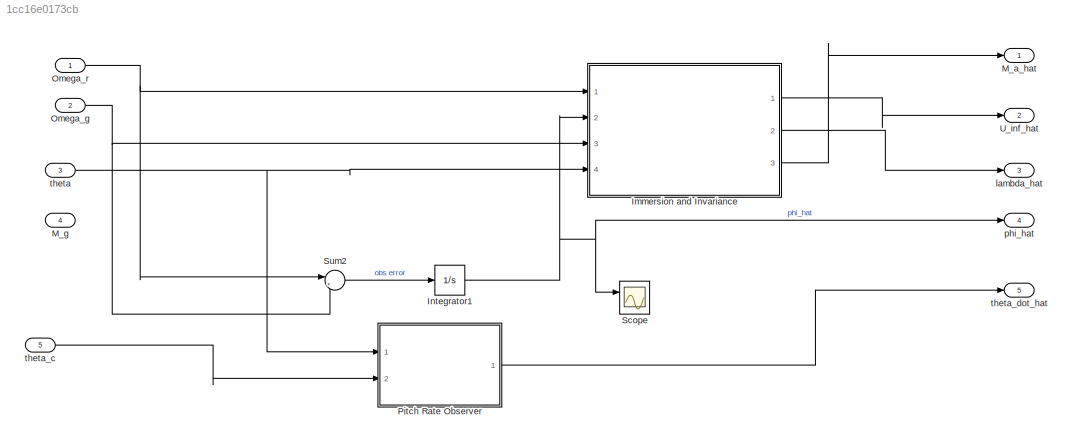
MODEL slx_1cc16e0173cb
KIND model
CONFIG AbsTol = auto
CONFIG EnableMultiTasking = off
CONFIG FixedStep = DT
CONFIG MaxStep = auto
CONFIG MinStep = auto
CONFIG RelTol = 1e-3
CONFIG SampleTimeConstraint = Unconstrained
CONFIG SolverName = FixedStepAuto
CONFIG StartTime = 0.0
CONFIG StopTime = 10.0
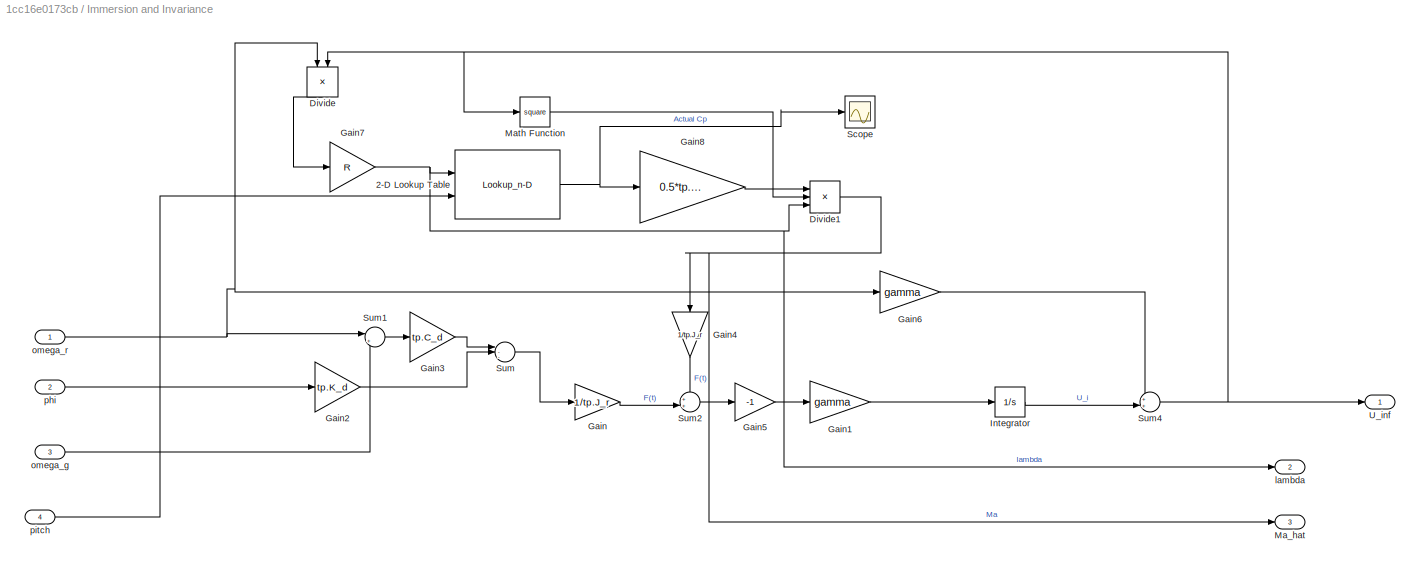
BLOCK [SubSystem] Immersion and Invariance
  Ports = [4, 3]
  RequestExecContextInheritance = off
  TreatAsAtomicUnit = on
BLOCK [Lookup_n-D] Immersion and Invariance/2-D Lookup Table
  BreakpointsForDimension1 = tp.lambda_bp
  BreakpointsForDimension2 = tp.theta_bp
  ExtrapMethod = Cubic spline
  InputPortMap = u0,u1
  InternalRulePriority = Speed
  InterpMethod = Cubic spline
  Ports = [2, 1]
  RndMeth = Simplest
  Table = tp.C_p
BLOCK [Product] Immersion and Invariance/Divide
  Inputs = */
  NameLocation = left
  Ports = [2, 1]
BLOCK [Product] Immersion and Invariance/Divide1
  Inputs = **/
  Ports = [3, 1]
BLOCK [Gain] Immersion and Invariance/Gain
  Gain = 1/tp.J_r
BLOCK [Gain] Immersion and Invariance/Gain1
  Gain = gamma
BLOCK [Gain] Immersion and Invariance/Gain2
  Gain = tp.K_d
BLOCK [Gain] Immersion and Invariance/Gain3
  Gain = tp.C_d
BLOCK [Gain] Immersion and Invariance/Gain4
  Gain = 1/tp.J_r
  NameLocation = left
BLOCK [Gain] Immersion and Invariance/Gain5
  Gain = -1
BLOCK [Gain] Immersion and Invariance/Gain6
  Gain = gamma
BLOCK [Gain] Immersion and Invariance/Gain7
  Gain = R
BLOCK [Gain] Immersion and Invariance/Gain8
  Gain = 0.5*tp.rho*pi*tp.R^3
BLOCK [Integrator] Immersion and Invariance/Integrator
  InitialCondition = II_vx0
  Ports = [1, 1]
BLOCK [Outport] Immersion and Invariance/Ma_hat
  Port = 3
BLOCK [Math] Immersion and Invariance/Math Function
  Operator = square
  Ports = [1, 1]
BLOCK [Scope] Immersion and Invariance/Scope
  Floating = off
  NumInputPorts = 1
  Ports = [1]
  ScopeSpecificationString = Simulink.scopes.TimeScopeBlockCfg('CurrentConfiguration', extmgr.ConfigurationSet(extmgr.Configuration('Core','General UI',true),extmgr.Configuration('Core','Source UI',true),extmgr.Configuration('Sources','WiredSimulink',true,'DataLoggingVariableName','ScopeData1'),extmgr.Configuration('Visuals','Time Domain',true,'SerializedDisplays',{struct('MinYLimReal','0.47478','MaxYLimReal','0.47512','YLabe...<+1366ch>
BLOCK [Sum] Immersion and Invariance/Sum
  Inputs = |--+
  Ports = [3, 1]
BLOCK [Sum] Immersion and Invariance/Sum1
  Inputs = |+-
  Ports = [2, 1]
BLOCK [Sum] Immersion and Invariance/Sum2
  Inputs = ++|
  Ports = [2, 1]
BLOCK [Sum] Immersion and Invariance/Sum4
  Inputs = ++|
  Ports = [2, 1]
BLOCK [Outport] Immersion and Invariance/U_inf
BLOCK [Outport] Immersion and Invariance/lambda
  Port = 2
BLOCK [Inport] Immersion and Invariance/omega_g
  Port = 3
BLOCK [Inport] Immersion and Invariance/omega_r
BLOCK [Inport] Immersion and Invariance/phi
  Port = 2
BLOCK [Inport] Immersion and Invariance/pitch
  Port = 4
BLOCK [Integrator] Integrator1
  InitialCondition = phi_0
  Ports = [1, 1]
BLOCK [Outport] M_a_hat
BLOCK [Inport] M_g
  Port = 4
BLOCK [Inport] Omega_g
  Port = 2
BLOCK [Inport] Omega_r
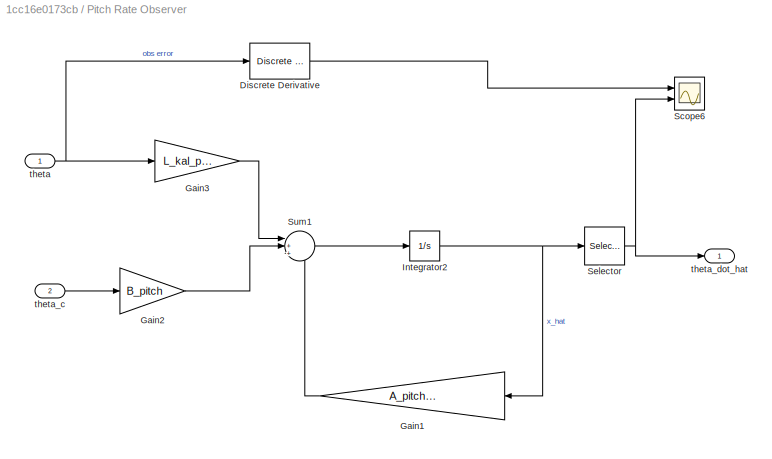
BLOCK [SubSystem] Pitch Rate Observer
  Ports = [2, 1]
  RequestExecContextInheritance = off
  TreatAsAtomicUnit = on
BLOCK [Reference] Pitch Rate Observer/Discrete Derivative  REF=simulink/Discrete/Discrete Derivative
  Ports = [1, 1]
  SourceBlock = simulink/Discrete/Discrete Derivative
  SourceProductBaseCode = SL
  SourceType = Discrete Derivative
BLOCK [Gain] Pitch Rate Observer/Gain1
  Gain = A_pitch - L_kal_pitch*C_pitch
  Multiplication = Matrix(K*u)
  NameLocation = top
BLOCK [Gain] Pitch Rate Observer/Gain2
  Gain = B_pitch
BLOCK [Gain] Pitch Rate Observer/Gain3
  Gain = L_kal_pitch
BLOCK [Integrator] Pitch Rate Observer/Integrator2
  InitialCondition = ini_pitch
  Ports = [1, 1]
BLOCK [Scope] Pitch Rate Observer/Scope6
  Floating = off
  NumInputPorts = 2
  Ports = [2]
  ScopeSpecificationString = Simulink.scopes.TimeScopeBlockCfg('CurrentConfiguration', extmgr.ConfigurationSet(extmgr.Configuration('Core','General UI',true),extmgr.Configuration('Core','Source UI',true),extmgr.Configuration('Sources','WiredSimulink',true,'DataLoggingVariableName','ScopeData7'),extmgr.Configuration('Visuals','Time Domain',true,'SerializedDisplays',{struct('MinYLimReal','-0.19469','MaxYLimReal','2.27511','YLab...<+1488ch>
BLOCK [Selector] Pitch Rate Observer/Selector
  IndexOptions = Index vector (dialog)
  Indices = [2]
  InputPortWidth = 2
  OutputSizes = 1
  Ports = [1, 1]
BLOCK [Sum] Pitch Rate Observer/Sum1
  Inputs = |+++
  Ports = [3, 1]
BLOCK [Inport] Pitch Rate Observer/theta
BLOCK [Inport] Pitch Rate Observer/theta_c
  Port = 2
BLOCK [Outport] Pitch Rate Observer/theta_dot_hat
BLOCK [Scope] Scope
  Floating = off
  NumInputPorts = 2
  Ports = [2]
  ScopeSpecificationString = Simulink.scopes.TimeScopeBlockCfg('CurrentConfiguration', extmgr.ConfigurationSet(extmgr.Configuration('Core','General UI',true),extmgr.Configuration('Core','Source UI',true),extmgr.Configuration('Sources','WiredSimulink',true,'DataLoggingVariableName','ScopeData1','DataLoggingSaveFormat','Array','DataLoggingLimitDataPoints',true,'DataLoggingDecimation','1'),extmgr.Configuration('Visuals','Time Do...<+1739ch>
BLOCK [Sum] Sum2
  Inputs = |+-
  Ports = [2, 1]
BLOCK [Outport] U_inf_hat
  Port = 2
BLOCK [Outport] lambda_hat
  Port = 3
BLOCK [Outport] phi_hat
  Port = 4
BLOCK [Inport] theta
  Port = 3
BLOCK [Inport] theta_c
  Port = 5
BLOCK [Outport] theta_dot_hat
  Port = 5
NET Immersion and Invariance/2-D Lookup Table:1 -> Immersion and Invariance/Gain8:1, Immersion and Invariance/Scope:1
NET Immersion and Invariance/Divide1:1 -> Immersion and Invariance/Gain4:1, Immersion and Invariance/Ma_hat:1
LINE Immersion and Invariance/Divide:1 -> Immersion and Invariance/Gain7:1
LINE Immersion and Invariance/Gain1:1 -> Immersion and Invariance/Integrator:1
LINE Immersion and Invariance/Gain2:1 -> Immersion and Invariance/Sum:2
LINE Immersion and Invariance/Gain3:1 -> Immersion and Invariance/Sum:1
LINE Immersion and Invariance/Gain4:1 -> Immersion and Invariance/Sum2:1
LINE Immersion and Invariance/Gain5:1 -> Immersion and Invariance/Gain1:1
LINE Immersion and Invariance/Gain6:1 -> Immersion and Invariance/Sum4:1
NET Immersion and Invariance/Gain7:1 -> Immersion and Invariance/2-D Lookup Table:1, Immersion and Invariance/Divide1:3, Immersion and Invariance/lambda:1
LINE Immersion and Invariance/Gain8:1 -> Immersion and Invariance/Divide1:1
LINE Immersion and Invariance/Gain:1 -> Immersion and Invariance/Sum2:2
LINE Immersion and Invariance/Integrator:1 -> Immersion and Invariance/Sum4:2
LINE Immersion and Invariance/Math Function:1 -> Immersion and Invariance/Divide1:2
LINE Immersion and Invariance/Sum1:1 -> Immersion and Invariance/Gain3:1
LINE Immersion and Invariance/Sum2:1 -> Immersion and Invariance/Gain5:1
NET Immersion and Invariance/Sum4:1 -> Immersion and Invariance/Divide:2, Immersion and Invariance/Math Function:1, Immersion and Invariance/U_inf:1
LINE Immersion and Invariance/Sum:1 -> Immersion and Invariance/Gain:1
LINE Immersion and Invariance/omega_g:1 -> Immersion and Invariance/Sum1:2
NET Immersion and Invariance/omega_r:1 -> Immersion and Invariance/Divide:1, Immersion and Invariance/Gain6:1, Immersion and Invariance/Sum1:1
LINE Immersion and Invariance/phi:1 -> Immersion and Invariance/Gain2:1
LINE Immersion and Invariance/pitch:1 -> Immersion and Invariance/2-D Lookup Table:2
LINE Immersion and Invariance:1 -> U_inf_hat:1
LINE Immersion and Invariance:2 -> lambda_hat:1
LINE Immersion and Invariance:3 -> M_a_hat:1
NET Integrator1:1 -> Immersion and Invariance:2, Scope:1, phi_hat:1
NET Omega_g:1 -> Immersion and Invariance:3, Sum2:2
NET Omega_r:1 -> Immersion and Invariance:1, Sum2:1
LINE Pitch Rate Observer/Discrete Derivative:1 -> Pitch Rate Observer/Scope6:1
LINE Pitch Rate Observer/Gain1:1 -> Pitch Rate Observer/Sum1:3
LINE Pitch Rate Observer/Gain2:1 -> Pitch Rate Observer/Sum1:2
LINE Pitch Rate Observer/Gain3:1 -> Pitch Rate Observer/Sum1:1
NET Pitch Rate Observer/Integrator2:1 -> Pitch Rate Observer/Gain1:1, Pitch Rate Observer/Selector:1
NET Pitch Rate Observer/Selector:1 -> Pitch Rate Observer/Scope6:2, Pitch Rate Observer/theta_dot_hat:1
LINE Pitch Rate Observer/Sum1:1 -> Pitch Rate Observer/Integrator2:1
NET Pitch Rate Observer/theta:1 -> Pitch Rate Observer/Discrete Derivative:1, Pitch Rate Observer/Gain3:1
LINE Pitch Rate Observer/theta_c:1 -> Pitch Rate Observer/Gain2:1
LINE Pitch Rate Observer:1 -> theta_dot_hat:1
LINE Sum2:1 -> Integrator1:1
NET theta:1 -> Immersion and Invariance:4, Pitch Rate Observer:1
LINE theta_c:1 -> Pitch Rate Observer:2
note: NET lines group one-source signal fan-out (src -> all destinations, sorted); 1:1 wires keep LINE
